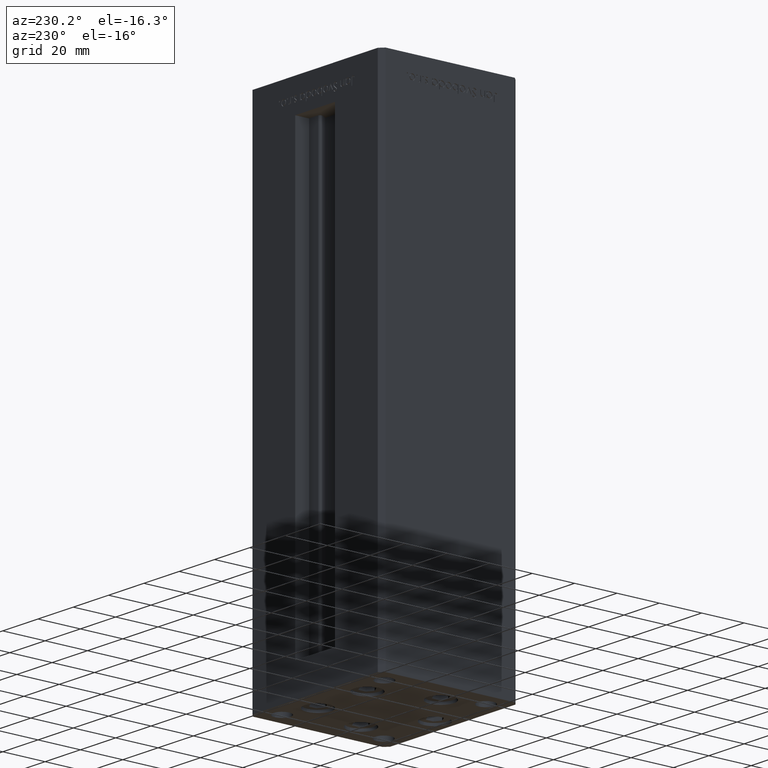
[diagram: clean part render]
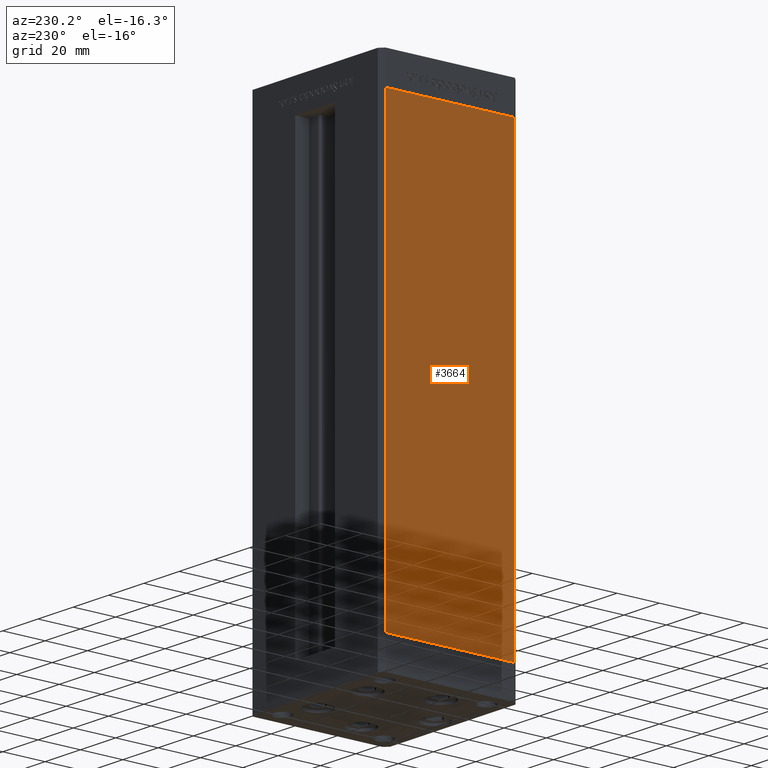
[diagram: same view with one face highlighted and labeled with its STEP entity id]
A machine part, auxiliary view. The second image highlights one B-rep face of the part: STEP entity #3664.
In plain terms, the highlighted planar face has unit normal (1, 0, 0).
Its self-contained STEP definition (entity closure, byte-faithful):
#687 = DIRECTION ( 'NONE',  ( -0.000000000000000000, -0.000000000000000000, -1.000000000000000000 ) ) ;
#929 = ORIENTED_EDGE ( 'NONE', *, *, #41988, .F. ) ;
#1857 = EDGE_CURVE ( 'NONE', #42700, #15260, #9891, .T. ) ;
#3085 = CARTESIAN_POINT ( 'NONE',  ( -37.49999999999999289, -30.50000000000000000, 0.000000000000000000 ) ) ;
#3383 = DIRECTION ( 'NONE',  ( 1.000000000000000000, 2.275047181608928137E-16, -0.000000000000000000 ) ) ;
#3664 = ADVANCED_FACE ( 'NONE', ( #39563 ), #39304, .F. ) ;
#6550 = DIRECTION ( 'NONE',  ( -2.275047181608928137E-16, 1.000000000000000000, 0.000000000000000000 ) ) ;
#9891 = LINE ( 'NONE', #26258, #32015 ) ;
#10430 = VECTOR ( 'NONE', #29056, 1000.000000000000000 ) ;
#13250 = CARTESIAN_POINT ( 'NONE',  ( -37.49999999999999289, -30.50000000000000000, 206.0000000000000000 ) ) ;
#15260 = VERTEX_POINT ( 'NONE', #3085 ) ;
#21601 = VECTOR ( 'NONE', #36436, 1000.000000000000000 ) ;
#21928 = ORIENTED_EDGE ( 'NONE', *, *, #1857, .T. ) ;
#24411 = VECTOR ( 'NONE', #687, 1000.000000000000000 ) ;
#26258 = CARTESIAN_POINT ( 'NONE',  ( -37.50000000000000711, 30.50000000000000000, 0.000000000000000000 ) ) ;
#27928 = VERTEX_POINT ( 'NONE', #13250 ) ;
#28263 = LINE ( 'NONE', #32220, #21601 ) ;
#29056 = DIRECTION ( 'NONE',  ( 2.275047181608927644E-16, -1.000000000000000000, 0.000000000000000000 ) ) ;
#29972 = CARTESIAN_POINT ( 'NONE',  ( -37.50000000000000711, 30.50000000000000000, 0.000000000000000000 ) ) ;
#32015 = VECTOR ( 'NONE', #42340, 1000.000000000000000 ) ;
#32220 = CARTESIAN_POINT ( 'NONE',  ( -37.50000000000000711, 30.50000000000000000, 206.0000000000000000 ) ) ;
#32751 = LINE ( 'NONE', #48812, #10430 ) ;
#33780 = EDGE_CURVE ( 'NONE', #38681, #42700, #28263, .T. ) ;
#36436 = DIRECTION ( 'NONE',  ( -0.000000000000000000, -0.000000000000000000, -1.000000000000000000 ) ) ;
#36878 = LINE ( 'NONE', #45023, #24411 ) ;
#37501 = CARTESIAN_POINT ( 'NONE',  ( -37.50000000000000711, 30.50000000000000000, 206.0000000000000000 ) ) ;
#38681 = VERTEX_POINT ( 'NONE', #37501 ) ;
#39304 = PLANE ( 'NONE',  #48031 ) ;
#39563 = FACE_OUTER_BOUND ( 'NONE', #41268, .T. ) ;
#40143 = EDGE_CURVE ( 'NONE', #27928, #15260, #36878, .T. ) ;
#41268 = EDGE_LOOP ( 'NONE', ( #21928, #46260, #929, #49573 ) ) ;
#41988 = EDGE_CURVE ( 'NONE', #38681, #27928, #32751, .T. ) ;
#42340 = DIRECTION ( 'NONE',  ( 2.275047181608927644E-16, -1.000000000000000000, 0.000000000000000000 ) ) ;
#42700 = VERTEX_POINT ( 'NONE', #29972 ) ;
#43764 = CARTESIAN_POINT ( 'NONE',  ( -37.50000000000000711, 30.50000000000000000, 206.0000000000000000 ) ) ;
#45023 = CARTESIAN_POINT ( 'NONE',  ( -37.49999999999999289, -30.50000000000000000, 206.0000000000000000 ) ) ;
#46260 = ORIENTED_EDGE ( 'NONE', *, *, #40143, .F. ) ;
#48031 = AXIS2_PLACEMENT_3D ( 'NONE', #43764, #3383, #6550 ) ;
#48812 = CARTESIAN_POINT ( 'NONE',  ( -37.50000000000000711, 30.50000000000000000, 206.0000000000000000 ) ) ;
#49573 = ORIENTED_EDGE ( 'NONE', *, *, #33780, .T. ) ;